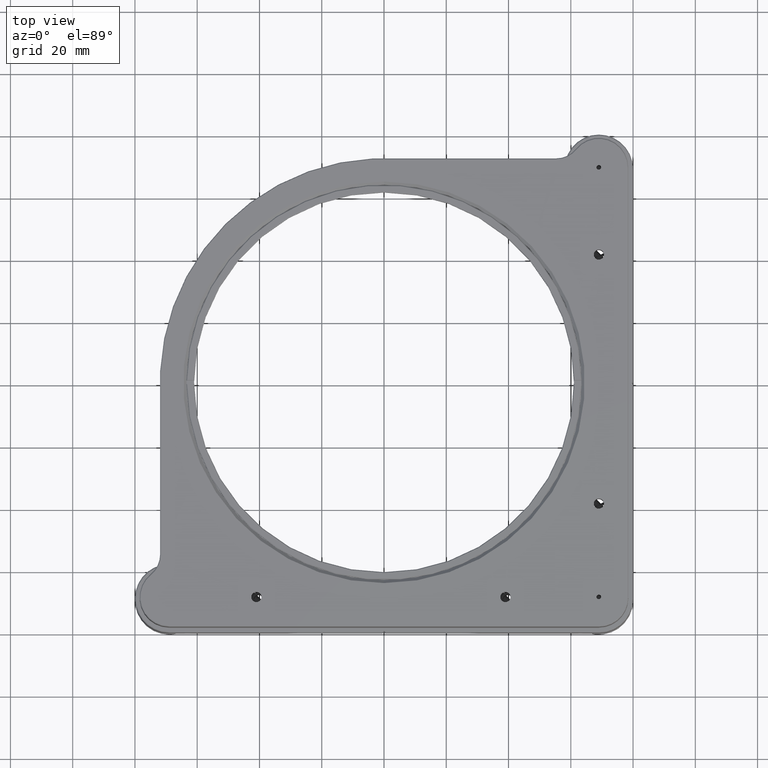
[diagram: clean part render]
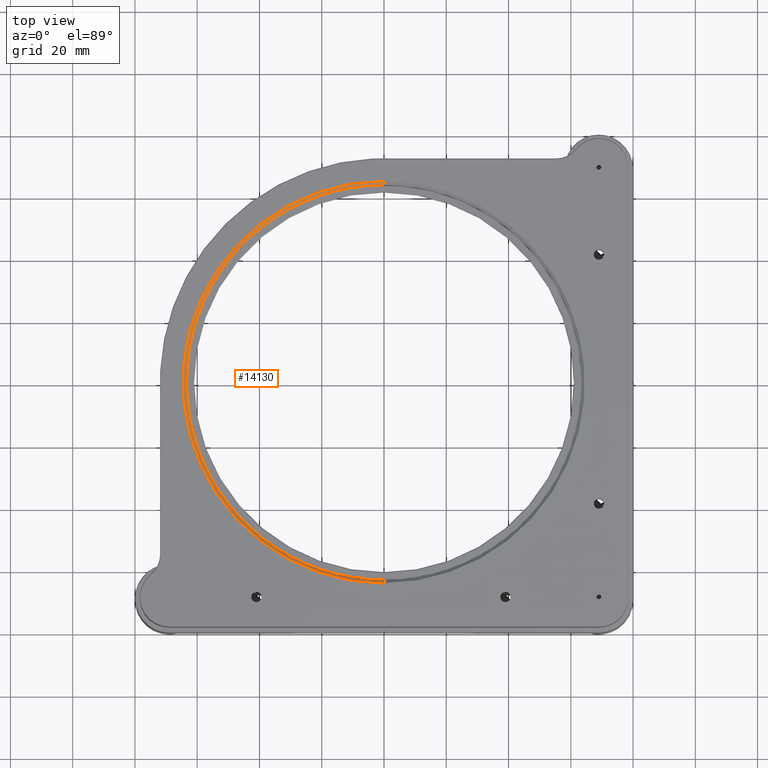
[diagram: same view with one face highlighted and labeled with its STEP entity id]
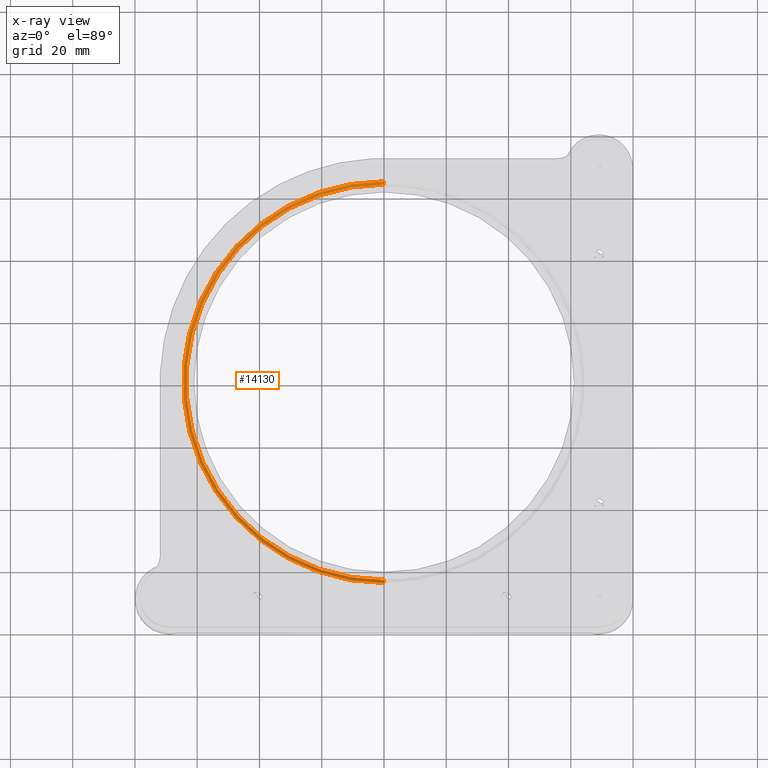
[diagram: x-ray of the same camera — body ghosted, the highlighted face saturated]
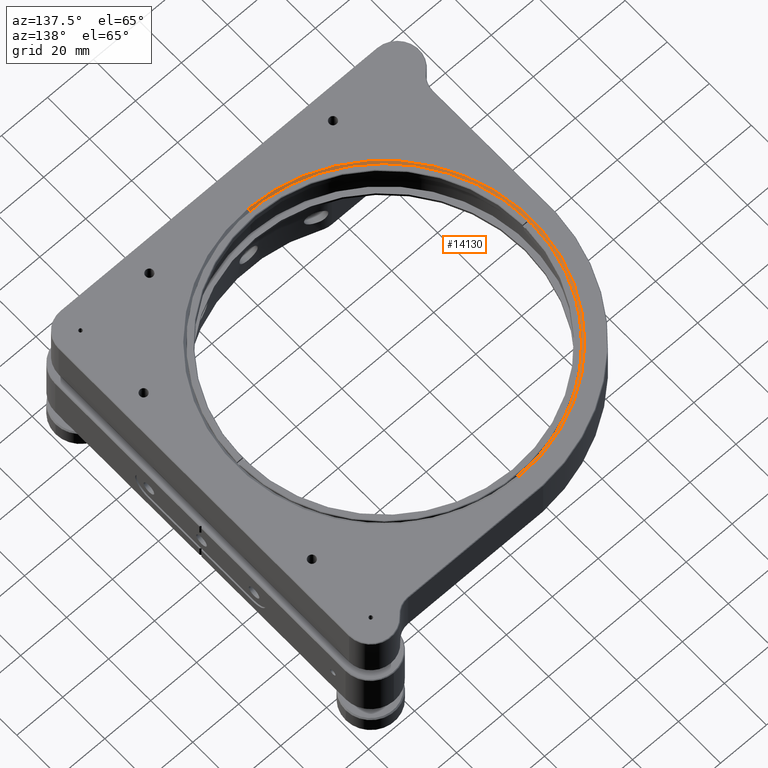
[diagram: same view with one face highlighted and labeled with its STEP entity id]
A machine part, top view. The second image highlights one B-rep face of the part: STEP entity #14130.
The next image is the same camera in x-ray: the body ghosted, the highlighted face saturated — about 0% of this face is hidden behind the body in this view.
A second angle (auxiliary view) of the same face is appended — the face is thin or edge-on in the first view.
In plain terms, the highlighted conical surface has half-angle 45 deg.
Its self-contained STEP definition (entity closure, byte-faithful):
#969 = CONICAL_SURFACE ( 'NONE', #15835, 64.50000000000044054, 0.7853981633974500554 ) ;
#1237 = DIRECTION ( 'NONE',  ( -6.383782391594642219E-16, 1.000000000000000000, 0.000000000000000000 ) ) ;
#1504 = DIRECTION ( 'NONE',  ( 1.460576560598801016E-21, -3.453575010322097839E-36, 1.000000000000000000 ) ) ;
#2095 = VECTOR ( 'NONE', #5526, 999.9999999999998863 ) ;
#2793 = FACE_OUTER_BOUND ( 'NONE', #6865, .T. ) ;
#3306 = ORIENTED_EDGE ( 'NONE', *, *, #13992, .F. ) ;
#3379 = CARTESIAN_POINT ( 'NONE',  ( -2.775554640409759618E-14, -5.551115123125781440E-14, 35.39949493661167423 ) ) ;
#3845 = VERTEX_POINT ( 'NONE', #13326 ) ;
#4428 = CARTESIAN_POINT ( 'NONE',  ( -6.829256605130041711E-14, 63.50000000000037659, 34.39949493661168134 ) ) ;
#4664 = DIRECTION ( 'NONE',  ( -6.383782391594642219E-16, 1.000000000000000000, 0.000000000000000000 ) ) ;
#5227 = EDGE_CURVE ( 'NONE', #3845, #8013, #16143, .T. ) ;
#5259 = CARTESIAN_POINT ( 'NONE',  ( -2.775554640409759618E-14, -5.551115123125781440E-14, 35.39949493661167423 ) ) ;
#5526 = DIRECTION ( 'NONE',  ( 3.648070090316278316E-16, -0.7071067811865511255, 0.7071067811865439090 ) ) ;
#5637 = AXIS2_PLACEMENT_3D ( 'NONE', #5259, #10852, #1237 ) ;
#6865 = EDGE_LOOP ( 'NONE', ( #3306, #8084, #9850, #17406 ) ) ;
#6931 = EDGE_CURVE ( 'NONE', #18008, #14425, #17722, .T. ) ;
#7576 = VECTOR ( 'NONE', #13693, 999.9999999999998863 ) ;
#8013 = VERTEX_POINT ( 'NONE', #16903 ) ;
#8034 = CARTESIAN_POINT ( 'NONE',  ( -6.893094282988332288E-14, 64.50000000000038369, 35.39949493661167423 ) ) ;
#8084 = ORIENTED_EDGE ( 'NONE', *, *, #6931, .F. ) ;
#9756 = LINE ( 'NONE', #8034, #7576 ) ;
#9788 = DIRECTION ( 'NONE',  ( -6.383782391594642219E-16, 1.000000000000000000, 0.000000000000000000 ) ) ;
#9850 = ORIENTED_EDGE ( 'NONE', *, *, #17824, .T. ) ;
#10741 = AXIS2_PLACEMENT_3D ( 'NONE', #11332, #15261, #9788 ) ;
#10852 = DIRECTION ( 'NONE',  ( 1.460576560598801016E-21, -3.453575010322097839E-36, 1.000000000000000000 ) ) ;
#11075 = CARTESIAN_POINT ( 'NONE',  ( 5.004951097609419351E-15, -63.50000000000005684, 34.39949493661168134 ) ) ;
#11332 = CARTESIAN_POINT ( 'NONE',  ( -2.775554786467415858E-14, -5.551115123125781440E-14, 34.39949493661168134 ) ) ;
#13326 = CARTESIAN_POINT ( 'NONE',  ( -6.893094282988332288E-14, 64.50000000000038369, 35.39949493661167423 ) ) ;
#13499 = CARTESIAN_POINT ( 'NONE',  ( 5.520878167187652718E-15, -64.50000000000049738, 35.39949493661167423 ) ) ;
#13693 = DIRECTION ( 'NONE',  ( -4.514005490879966237E-16, 0.7071067811865511255, 0.7071067811865439090 ) ) ;
#13992 = EDGE_CURVE ( 'NONE', #14425, #8013, #16583, .T. ) ;
#14130 = ADVANCED_FACE ( 'NONE', ( #2793 ), #969, .F. ) ;
#14425 = VERTEX_POINT ( 'NONE', #11075 ) ;
#15261 = DIRECTION ( 'NONE',  ( 1.460576560598801016E-21, -3.453575010322097839E-36, 1.000000000000000000 ) ) ;
#15835 = AXIS2_PLACEMENT_3D ( 'NONE', #3379, #1504, #4664 ) ;
#16143 = CIRCLE ( 'NONE', #5637, 64.50000000000044054 ) ;
#16583 = LINE ( 'NONE', #13499, #2095 ) ;
#16903 = CARTESIAN_POINT ( 'NONE',  ( 5.520878167187652718E-15, -64.50000000000049738, 35.39949493661167423 ) ) ;
#17406 = ORIENTED_EDGE ( 'NONE', *, *, #5227, .T. ) ;
#17722 = CIRCLE ( 'NONE', #10741, 63.50000000000043343 ) ;
#17824 = EDGE_CURVE ( 'NONE', #18008, #3845, #9756, .T. ) ;
#18008 = VERTEX_POINT ( 'NONE', #4428 ) ;